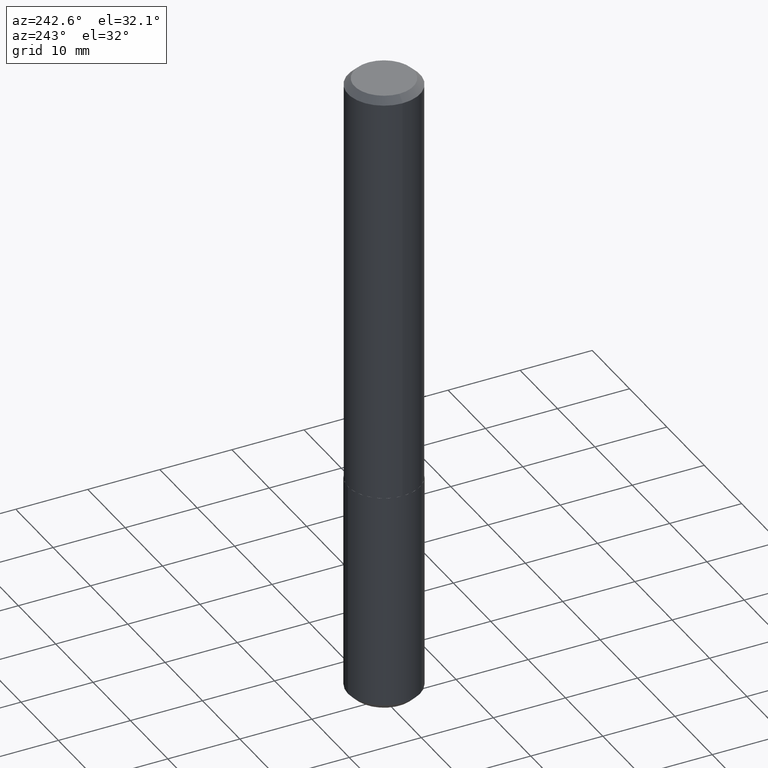
[diagram: clean part render]
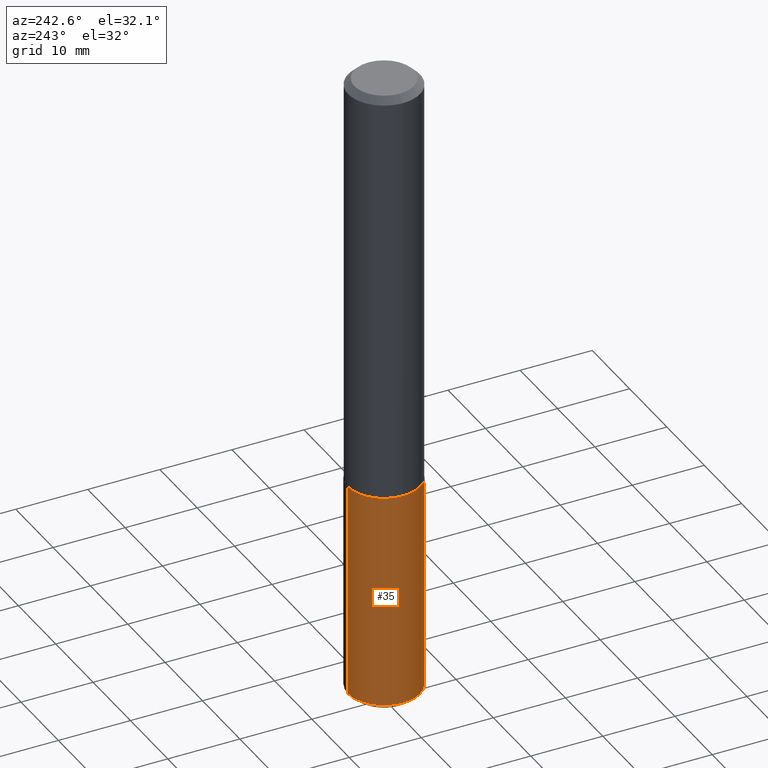
[diagram: same view with one face highlighted and labeled with its STEP entity id]
A machine part, auxiliary view. The second image highlights one B-rep face of the part: STEP entity #35.
In plain terms, the highlighted cylindrical surface (partial cylindrical patch) has radius 5 mm, axis along (-0, 0, 1).
Its self-contained STEP definition (entity closure, byte-faithful):
#3 = VERTEX_POINT ( 'NONE', #251 ) ;
#8 = AXIS2_PLACEMENT_3D ( 'NONE', #361, #206, #204 ) ;
#13 = ORIENTED_EDGE ( 'NONE', *, *, #20, .T. ) ;
#14 = CIRCLE ( 'NONE', #8, 0.1968500000000000250 ) ;
#20 = EDGE_CURVE ( 'NONE', #145, #3, #345, .T. ) ;
#23 = DIRECTION ( 'NONE',  ( -2.451305406586192978E-29, 3.483122994870167634E-15, 1.000000000000000000 ) ) ;
#29 = EDGE_CURVE ( 'NONE', #243, #145, #358, .T. ) ;
#35 = ADVANCED_FACE ( 'NONE', ( #168 ), #379, .T. ) ;
#62 = CARTESIAN_POINT ( 'NONE',  ( 5.583983472043140562E-29, -7.972448489114438042E-15, -2.283399999999999874 ) ) ;
#83 = EDGE_LOOP ( 'NONE', ( #149, #224, #13, #180 ) ) ;
#89 = LINE ( 'NONE', #226, #236 ) ;
#98 = VECTOR ( 'NONE', #122, 39.37007874015748143 ) ;
#122 = DIRECTION ( 'NONE',  ( -2.451305406586192978E-29, 3.483122994870167634E-15, 1.000000000000000000 ) ) ;
#145 = VERTEX_POINT ( 'NONE', #326 ) ;
#149 = ORIENTED_EDGE ( 'NONE', *, *, #380, .F. ) ;
#164 = CARTESIAN_POINT ( 'NONE',  ( 8.490006031551072042E-29, -1.210169079953302144E-14, -3.468899999999999650 ) ) ;
#168 = FACE_OUTER_BOUND ( 'NONE', #83, .T. ) ;
#171 = CARTESIAN_POINT ( 'NONE',  ( 1.398703375343841999E-15, 0.1968499999999920591, -2.283400000000000762 ) ) ;
#180 = ORIENTED_EDGE ( 'NONE', *, *, #279, .F. ) ;
#187 = CARTESIAN_POINT ( 'NONE',  ( -1.374596203102485599E-15, -0.1968500000000079631, -2.283399999999998986 ) ) ;
#188 = DIRECTION ( 'NONE',  ( -2.451305406586193258E-29, 3.483122994870168029E-15, 1.000000000000000000 ) ) ;
#204 = DIRECTION ( 'NONE',  ( -6.982962677686265133E-15, -1.000000000000000000, 4.163344669033674845E-15 ) ) ;
#206 = DIRECTION ( 'NONE',  ( -2.451305406586193258E-29, 3.483122994870168029E-15, 1.000000000000000000 ) ) ;
#208 = AXIS2_PLACEMENT_3D ( 'NONE', #62, #292, #261 ) ;
#224 = ORIENTED_EDGE ( 'NONE', *, *, #29, .T. ) ;
#226 = CARTESIAN_POINT ( 'NONE',  ( 1.398703375343812811E-15, 0.1968499999999920591, -2.283400000000000762 ) ) ;
#236 = VECTOR ( 'NONE', #23, 39.37007874015748143 ) ;
#243 = VERTEX_POINT ( 'NONE', #244 ) ;
#244 = CARTESIAN_POINT ( 'NONE',  ( 1.398703375343841012E-15, 0.1968499999999877847, -3.468900000000000095 ) ) ;
#251 = CARTESIAN_POINT ( 'NONE',  ( -1.374596203102485599E-15, -0.1968500000000079631, -2.283399999999998986 ) ) ;
#261 = DIRECTION ( 'NONE',  ( -6.982962677686265133E-15, -1.000000000000000000, 4.163344669033674845E-15 ) ) ;
#279 = EDGE_CURVE ( 'NONE', #307, #3, #14, .T. ) ;
#292 = DIRECTION ( 'NONE',  ( -2.451305406586193258E-29, 3.483122994870168029E-15, 1.000000000000000000 ) ) ;
#307 = VERTEX_POINT ( 'NONE', #171 ) ;
#317 = AXIS2_PLACEMENT_3D ( 'NONE', #164, #188, #386 ) ;
#326 = CARTESIAN_POINT ( 'NONE',  ( -1.374596203102457595E-15, -0.1968500000000122374, -3.468899999999999206 ) ) ;
#345 = LINE ( 'NONE', #187, #98 ) ;
#358 = CIRCLE ( 'NONE', #317, 0.1968500000000000250 ) ;
#361 = CARTESIAN_POINT ( 'NONE',  ( 5.583983472043140562E-29, -7.972448489114438042E-15, -2.283399999999999874 ) ) ;
#379 = CYLINDRICAL_SURFACE ( 'NONE', #208, 0.1968500000000000250 ) ;
#380 = EDGE_CURVE ( 'NONE', #243, #307, #89, .T. ) ;
#386 = DIRECTION ( 'NONE',  ( -6.982962677686265133E-15, -1.000000000000000000, 2.775563112689116301E-15 ) ) ;